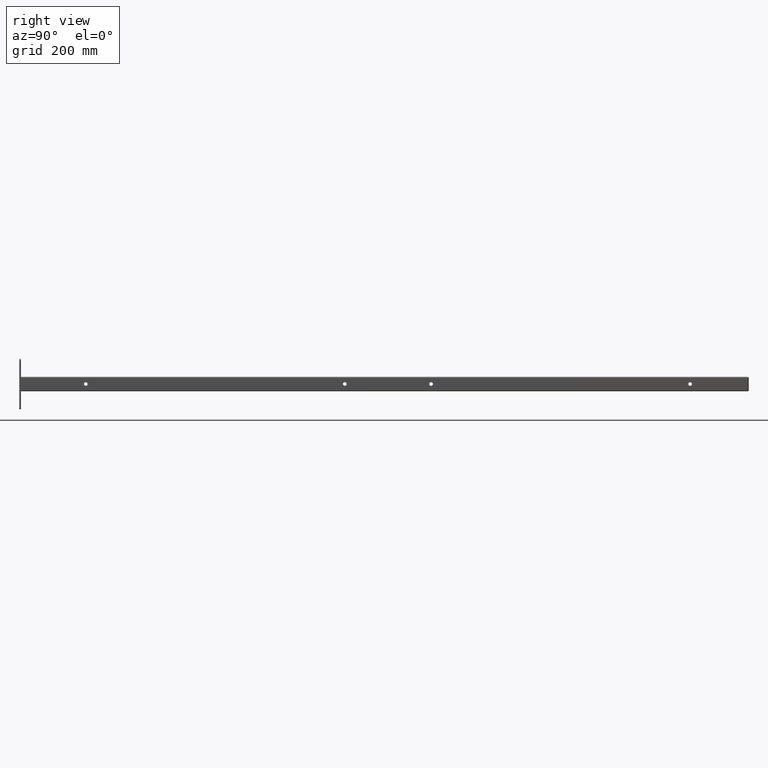
[diagram: clean part render]
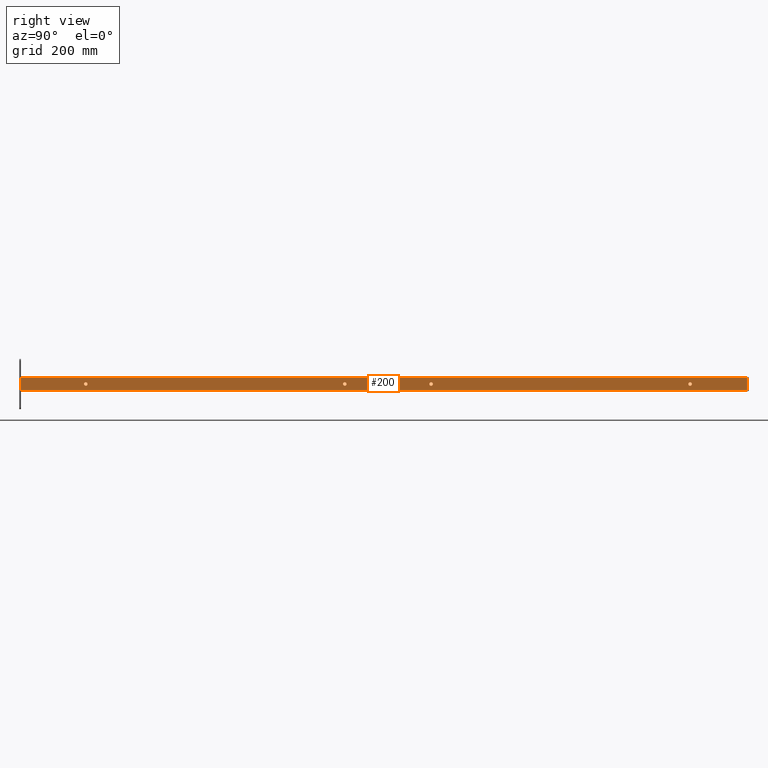
[diagram: same view with one face highlighted and labeled with its STEP entity id]
A machine part, right view. The second image highlights one B-rep face of the part: STEP entity #200.
In plain terms, the highlighted planar face has unit normal (-1, 0, 0).
Its self-contained STEP definition (entity closure, byte-faithful):
#53 = VERTEX_POINT ( 'NONE', #2293 ) ;
#103 = DIRECTION ( 'NONE',  ( 0.000000000000000000, 0.000000000000000000, 1.000000000000000000 ) ) ;
#130 = VECTOR ( 'NONE', #1442, 39.37007874015748143 ) ;
#151 = CARTESIAN_POINT ( 'NONE',  ( -5.204748896376250896E-15, 1.000000000000000000, -42.50000000000000000 ) ) ;
#173 = FACE_BOUND ( 'NONE', #3269, .T. ) ;
#183 = LINE ( 'NONE', #1491, #130 ) ;
#200 = ADVANCED_FACE ( 'NONE', ( #173, #1430, #3978, #2399, #3573 ), #2374, .F. ) ;
#255 = EDGE_CURVE ( 'NONE', #3097, #1165, #1487, .T. ) ;
#273 = EDGE_CURVE ( 'NONE', #499, #1165, #3999, .T. ) ;
#366 = ORIENTED_EDGE ( 'NONE', *, *, #4018, .F. ) ;
#373 = EDGE_CURVE ( 'NONE', #1273, #499, #1282, .T. ) ;
#374 = CARTESIAN_POINT ( 'NONE',  ( 0.8505999999999999117, 1.000000000000000000, 50.50000000000000000 ) ) ;
#394 = AXIS2_PLACEMENT_3D ( 'NONE', #3407, #3391, #2821 ) ;
#457 = AXIS2_PLACEMENT_3D ( 'NONE', #151, #3934, #2353 ) ;
#499 = VERTEX_POINT ( 'NONE', #2856 ) ;
#503 = DIRECTION ( 'NONE',  ( -1.000000000000000000, 0.000000000000000000, 0.000000000000000000 ) ) ;
#511 = ORIENTED_EDGE ( 'NONE', *, *, #273, .T. ) ;
#536 = CARTESIAN_POINT ( 'NONE',  ( -7.960204194457791533E-16, 1.000000000000000000, -6.499999999999996447 ) ) ;
#789 = AXIS2_PLACEMENT_3D ( 'NONE', #536, #3649, #1749 ) ;
#1147 = ORIENTED_EDGE ( 'NONE', *, *, #3696, .F. ) ;
#1165 = VERTEX_POINT ( 'NONE', #3597 ) ;
#1210 = CARTESIAN_POINT ( 'NONE',  ( 0.8505999999999999117, 1.000000000000000000, -50.50000000000000000 ) ) ;
#1273 = VERTEX_POINT ( 'NONE', #2099 ) ;
#1282 = LINE ( 'NONE', #374, #4060 ) ;
#1325 = VECTOR ( 'NONE', #503, 39.37007874015748143 ) ;
#1373 = VERTEX_POINT ( 'NONE', #1437 ) ;
#1400 = CARTESIAN_POINT ( 'NONE',  ( 6.735557395310442023E-16, 1.000000000000000000, 5.750000000000001776 ) ) ;
#1430 = FACE_BOUND ( 'NONE', #3888, .T. ) ;
#1437 = CARTESIAN_POINT ( 'NONE',  ( -7.960204194457791533E-16, 1.000000000000000000, -6.249999999999997335 ) ) ;
#1442 = DIRECTION ( 'NONE',  ( -1.000000000000000000, 0.000000000000000000, 0.000000000000000000 ) ) ;
#1451 = CIRCLE ( 'NONE', #394, 0.2499999999999998057 ) ;
#1460 = VERTEX_POINT ( 'NONE', #2970 ) ;
#1487 = LINE ( 'NONE', #2797, #3853 ) ;
#1491 = CARTESIAN_POINT ( 'NONE',  ( 0.8505999999999999117, 1.000000000000000000, 50.50000000000000000 ) ) ;
#1514 = EDGE_CURVE ( 'NONE', #53, #53, #3835, .T. ) ;
#1749 = DIRECTION ( 'NONE',  ( 0.000000000000000000, 0.000000000000000000, 1.000000000000000000 ) ) ;
#1877 = DIRECTION ( 'NONE',  ( -0.000000000000000000, -0.000000000000000000, -1.000000000000000000 ) ) ;
#1922 = DIRECTION ( 'NONE',  ( 0.000000000000000000, 1.000000000000000000, 0.000000000000000000 ) ) ;
#1999 = EDGE_CURVE ( 'NONE', #1373, #1373, #3640, .T. ) ;
#2024 = EDGE_CURVE ( 'NONE', #1273, #3097, #183, .T. ) ;
#2069 = ORIENTED_EDGE ( 'NONE', *, *, #2024, .F. ) ;
#2099 = CARTESIAN_POINT ( 'NONE',  ( 0.8505999999999999117, 1.000000000000000000, 50.50000000000000000 ) ) ;
#2229 = EDGE_LOOP ( 'NONE', ( #3410 ) ) ;
#2293 = CARTESIAN_POINT ( 'NONE',  ( -5.204748896376250896E-15, 1.000000000000000000, -42.24999999999999289 ) ) ;
#2326 = CARTESIAN_POINT ( 'NONE',  ( 5.053918788278887053E-15, 1.000000000000000000, 41.50000000000000000 ) ) ;
#2334 = AXIS2_PLACEMENT_3D ( 'NONE', #2356, #2988, #2700 ) ;
#2353 = DIRECTION ( 'NONE',  ( 0.000000000000000000, 0.000000000000000000, 1.000000000000000000 ) ) ;
#2356 = CARTESIAN_POINT ( 'NONE',  ( 0.8505999999999999117, 1.000000000000000000, 50.50000000000000000 ) ) ;
#2374 = PLANE ( 'NONE',  #2334 ) ;
#2399 = FACE_BOUND ( 'NONE', #4086, .T. ) ;
#2478 = ORIENTED_EDGE ( 'NONE', *, *, #255, .F. ) ;
#2489 = EDGE_LOOP ( 'NONE', ( #511, #2478, #2069, #3398 ) ) ;
#2700 = DIRECTION ( 'NONE',  ( 0.000000000000000000, -0.000000000000000000, -1.000000000000000000 ) ) ;
#2731 = VERTEX_POINT ( 'NONE', #1400 ) ;
#2797 = CARTESIAN_POINT ( 'NONE',  ( -0.8505999999999999117, 1.000000000000000000, 50.50000000000000000 ) ) ;
#2821 = DIRECTION ( 'NONE',  ( 0.000000000000000000, 0.000000000000000000, 1.000000000000000000 ) ) ;
#2856 = CARTESIAN_POINT ( 'NONE',  ( 0.8505999999999999117, 1.000000000000000000, -50.50000000000000000 ) ) ;
#2970 = CARTESIAN_POINT ( 'NONE',  ( 5.053918788278887053E-15, 1.000000000000000000, 41.75000000000000711 ) ) ;
#2988 = DIRECTION ( 'NONE',  ( 0.000000000000000000, -1.000000000000000000, 0.000000000000000000 ) ) ;
#3062 = DIRECTION ( 'NONE',  ( -0.000000000000000000, -0.000000000000000000, -1.000000000000000000 ) ) ;
#3097 = VERTEX_POINT ( 'NONE', #3184 ) ;
#3162 = CIRCLE ( 'NONE', #3913, 0.2500000000000030531 ) ;
#3184 = CARTESIAN_POINT ( 'NONE',  ( -0.8505999999999999117, 1.000000000000000000, 50.50000000000000000 ) ) ;
#3269 = EDGE_LOOP ( 'NONE', ( #1147 ) ) ;
#3391 = DIRECTION ( 'NONE',  ( 0.000000000000000000, 1.000000000000000000, 0.000000000000000000 ) ) ;
#3398 = ORIENTED_EDGE ( 'NONE', *, *, #373, .T. ) ;
#3407 = CARTESIAN_POINT ( 'NONE',  ( 6.735557395310442023E-16, 1.000000000000000000, 5.500000000000001776 ) ) ;
#3410 = ORIENTED_EDGE ( 'NONE', *, *, #1999, .F. ) ;
#3564 = ORIENTED_EDGE ( 'NONE', *, *, #1514, .F. ) ;
#3573 = FACE_OUTER_BOUND ( 'NONE', #2489, .T. ) ;
#3597 = CARTESIAN_POINT ( 'NONE',  ( -0.8505999999999999117, 1.000000000000000000, -50.50000000000000000 ) ) ;
#3640 = CIRCLE ( 'NONE', #789, 0.2499999999999998057 ) ;
#3649 = DIRECTION ( 'NONE',  ( 0.000000000000000000, 1.000000000000000000, 0.000000000000000000 ) ) ;
#3696 = EDGE_CURVE ( 'NONE', #1460, #1460, #3162, .T. ) ;
#3835 = CIRCLE ( 'NONE', #457, 0.2500000000000030531 ) ;
#3853 = VECTOR ( 'NONE', #3062, 39.37007874015748143 ) ;
#3888 = EDGE_LOOP ( 'NONE', ( #366 ) ) ;
#3913 = AXIS2_PLACEMENT_3D ( 'NONE', #2326, #1922, #103 ) ;
#3934 = DIRECTION ( 'NONE',  ( 0.000000000000000000, 1.000000000000000000, 0.000000000000000000 ) ) ;
#3978 = FACE_BOUND ( 'NONE', #2229, .T. ) ;
#3999 = LINE ( 'NONE', #1210, #1325 ) ;
#4018 = EDGE_CURVE ( 'NONE', #2731, #2731, #1451, .T. ) ;
#4060 = VECTOR ( 'NONE', #1877, 39.37007874015748143 ) ;
#4086 = EDGE_LOOP ( 'NONE', ( #3564 ) ) ;